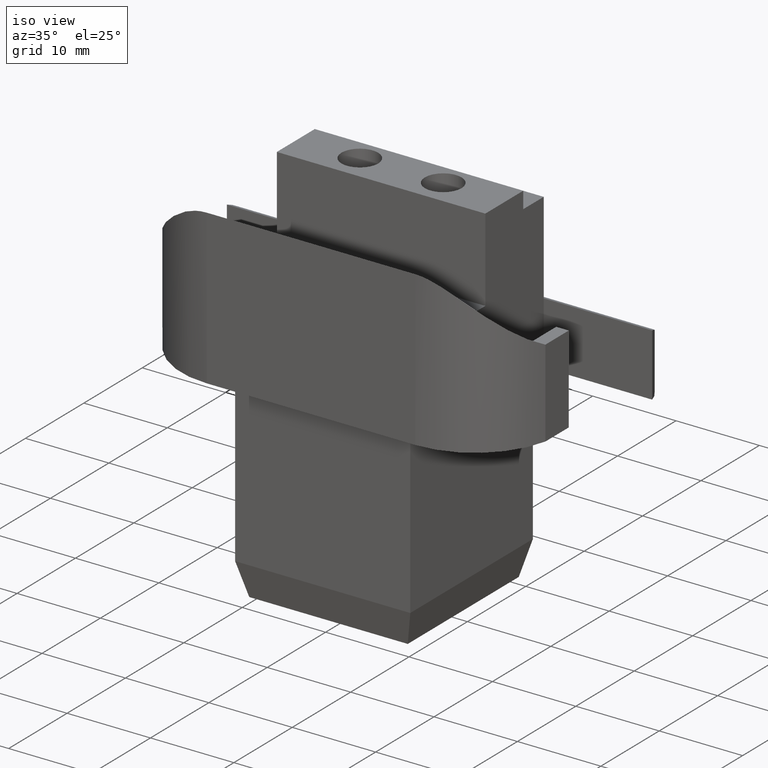
[diagram: clean part render]
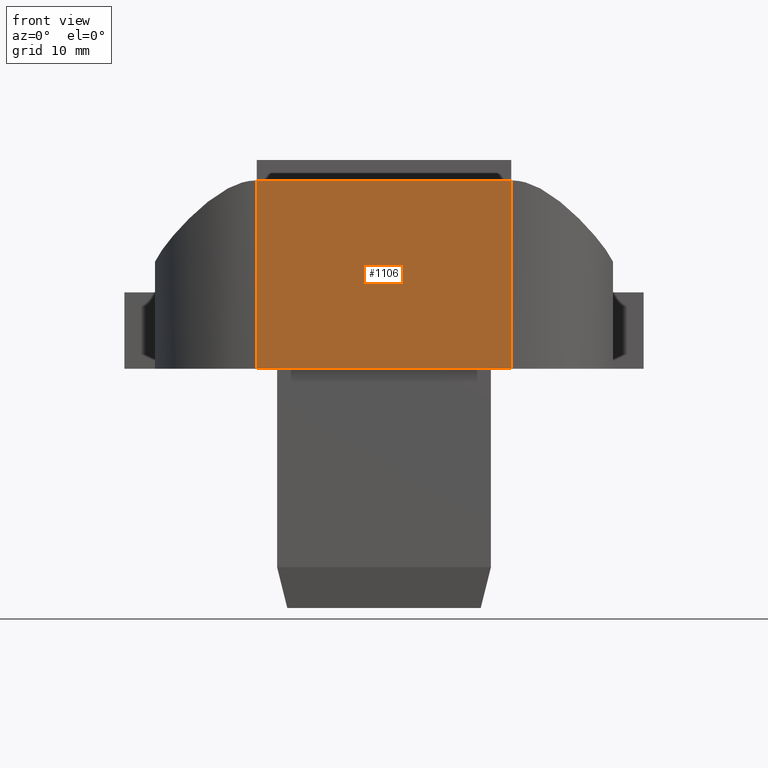
[diagram: tour spotlight — one face highlighted and labeled with its STEP entity id]
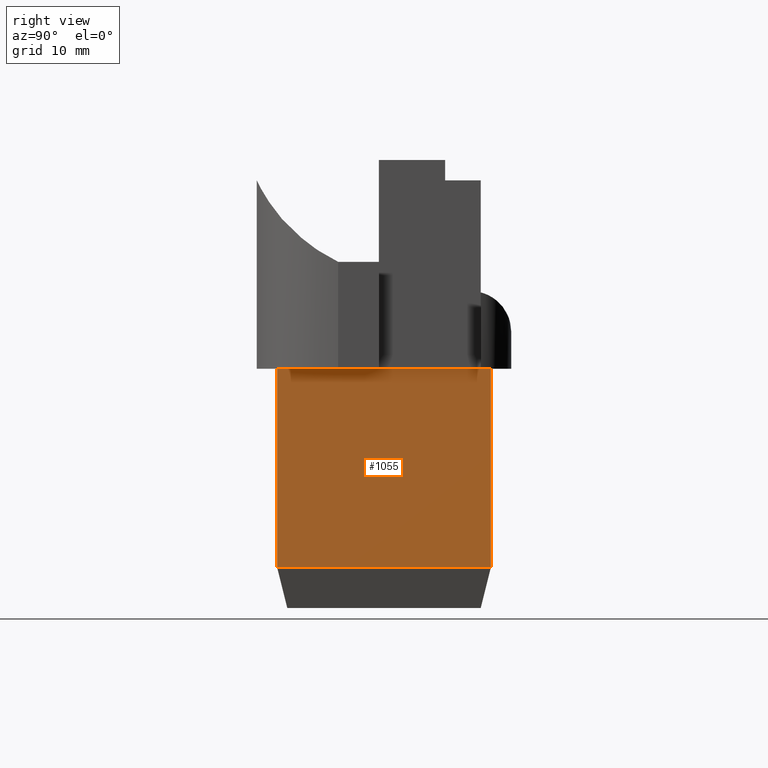
[diagram: tour spotlight — one face highlighted and labeled with its STEP entity id]
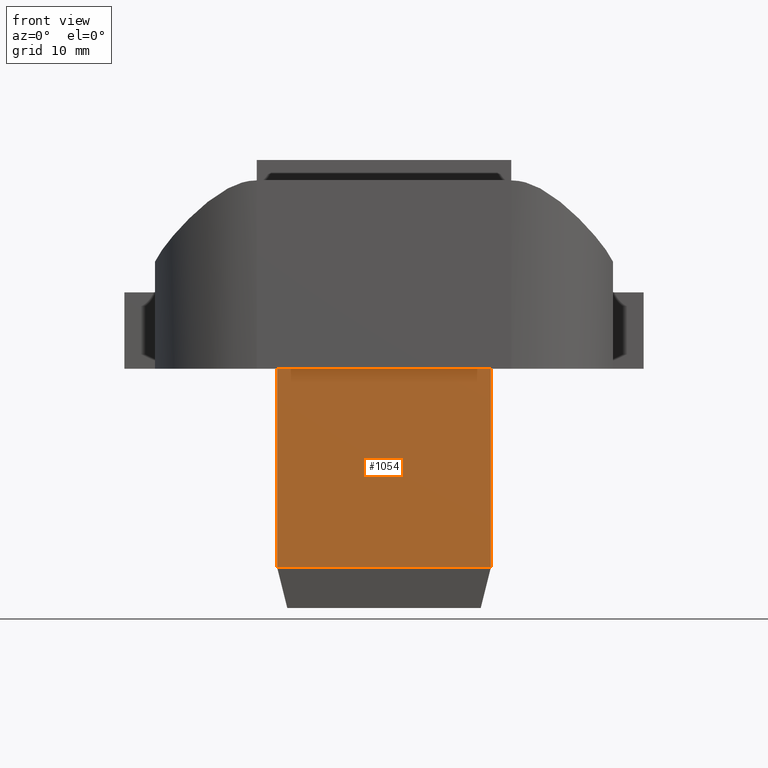
[diagram: tour spotlight — one face highlighted and labeled with its STEP entity id]
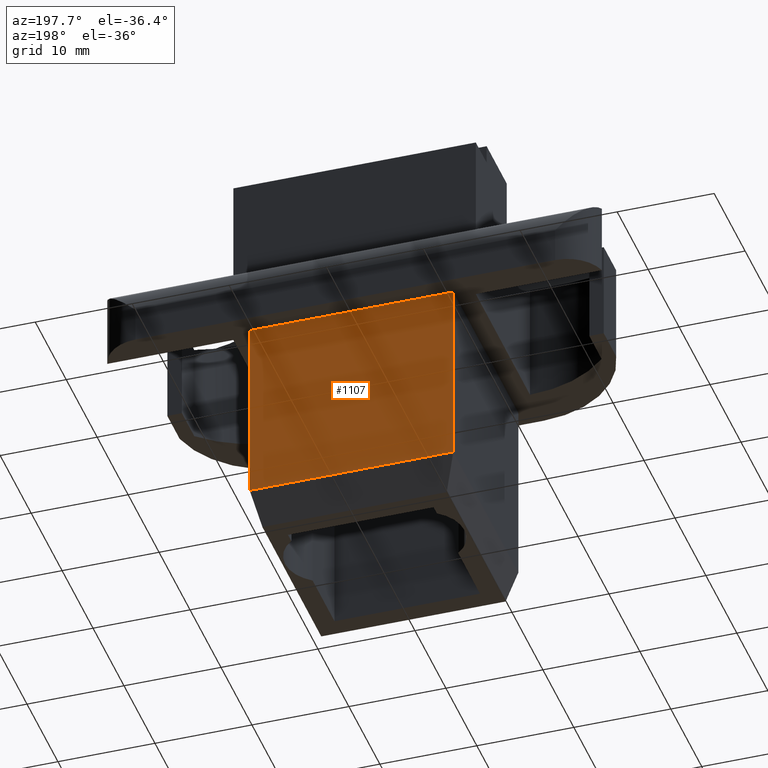
[diagram: tour spotlight — one face highlighted and labeled with its STEP entity id]
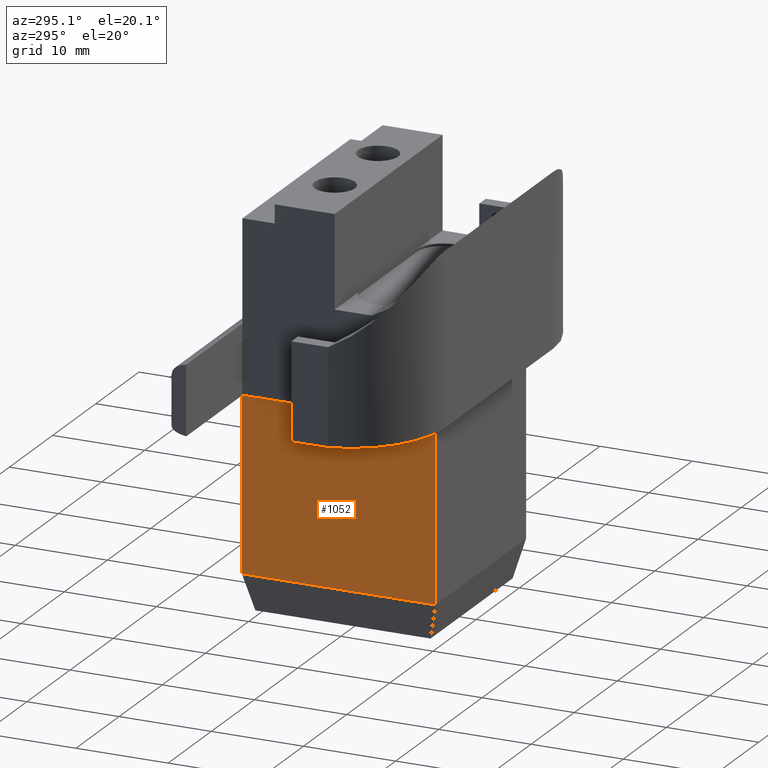
[diagram: tour spotlight — one face highlighted and labeled with its STEP entity id]
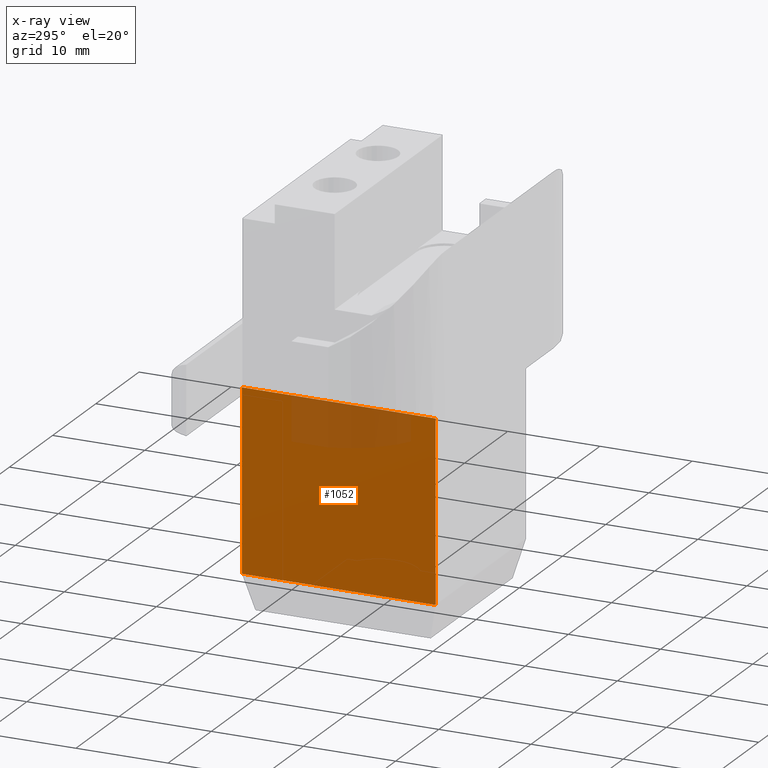
[diagram: x-ray of the same camera — body ghosted, this tour face saturated]
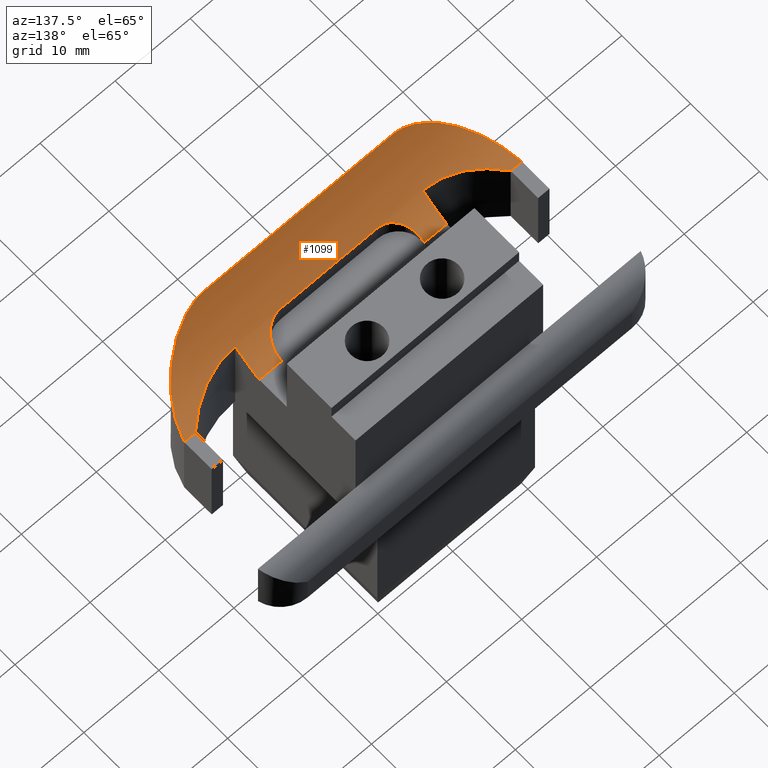
[diagram: tour spotlight — one face highlighted and labeled with its STEP entity id]
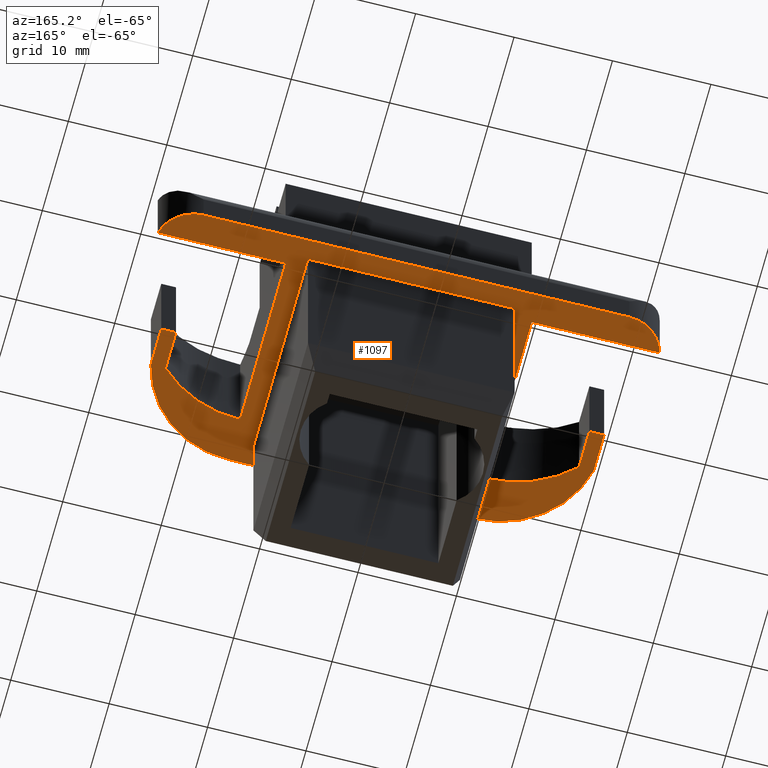
[diagram: tour spotlight — one face highlighted and labeled with its STEP entity id]
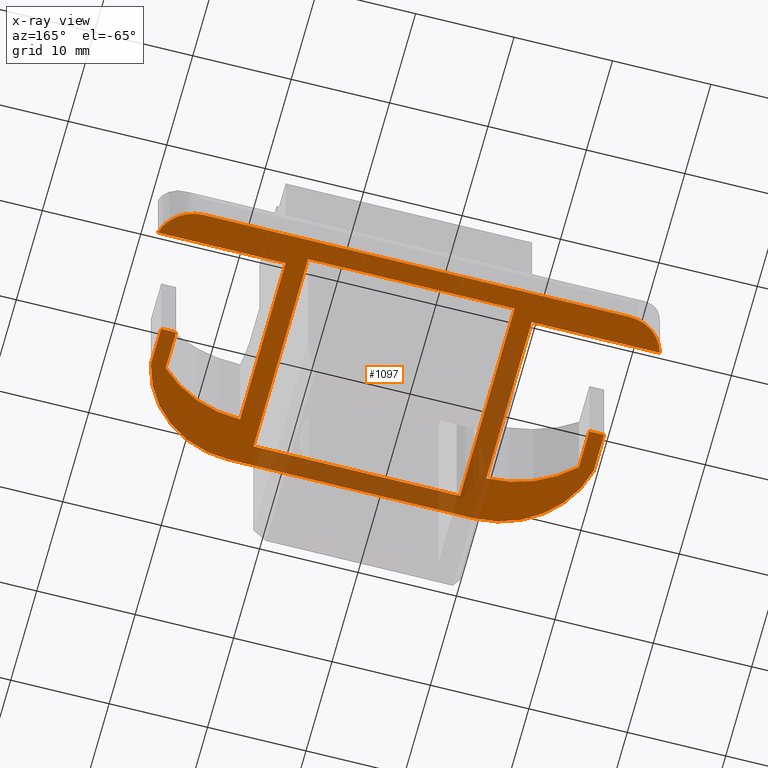
[diagram: x-ray of the same camera — body ghosted, this tour face saturated]
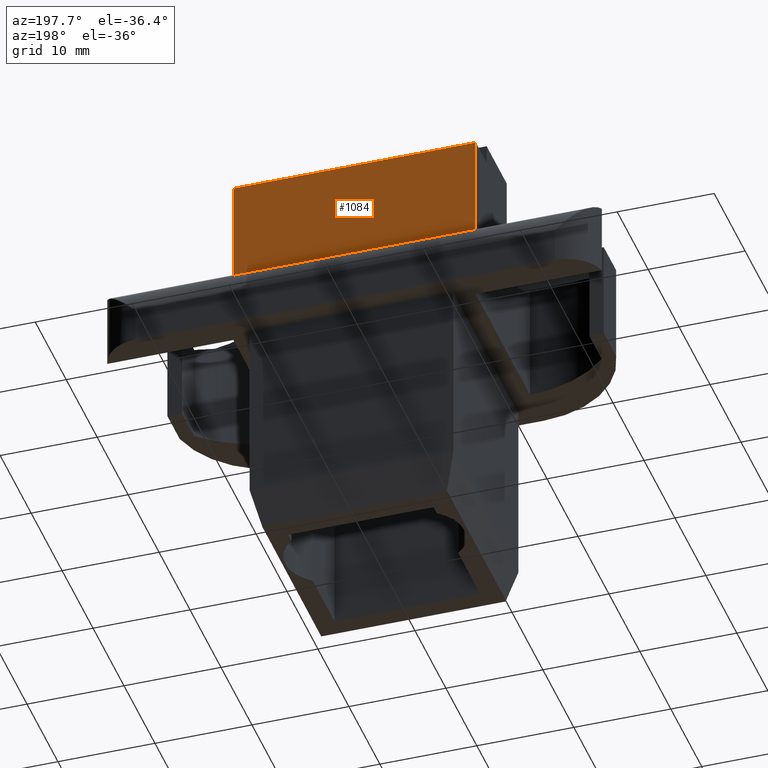
[diagram: tour spotlight — one face highlighted and labeled with its STEP entity id]
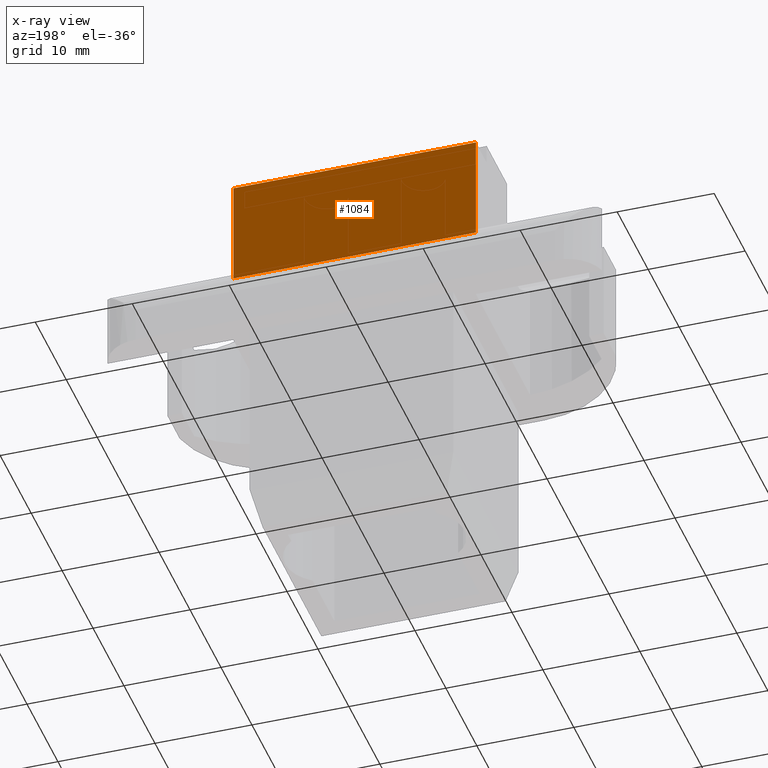
[diagram: x-ray of the same camera — body ghosted, this tour face saturated]
A machine part: a face-by-face anatomy tour. The part has 60 B-rep faces; the first image is the clean iso view, then the 8 largest visible faces are spotlighted one at a time (largest first), each with its STEP entity span.

Face 1 — front view, entity #1106. In plain terms, the highlighted planar face has unit normal (0, -1, 0).
Definition (entity closure, byte-faithful):
#134=FACE_OUTER_BOUND('',#202,.T.);
#202=EDGE_LOOP('',(#998,#999,#1000,#1001));
#306=LINE('',#1803,#426);
#312=LINE('',#1818,#432);
#318=LINE('',#1831,#438);
#323=LINE('',#1861,#443);
#426=VECTOR('',#1450,18.5);
#432=VECTOR('',#1464,25.);
#438=VECTOR('',#1474,25.);
#443=VECTOR('',#1489,18.5);
#532=VERTEX_POINT('',#1788);
#533=VERTEX_POINT('',#1801);
#538=VERTEX_POINT('',#1816);
#543=VERTEX_POINT('',#1830);
#676=EDGE_CURVE('',#533,#532,#306,.T.);
#684=EDGE_CURVE('',#538,#533,#312,.T.);
#690=EDGE_CURVE('',#532,#543,#318,.T.);
#697=EDGE_CURVE('',#538,#543,#323,.T.);
#998=ORIENTED_EDGE('',*,*,#684,.F.);
#999=ORIENTED_EDGE('',*,*,#697,.T.);
#1000=ORIENTED_EDGE('',*,*,#690,.F.);
#1001=ORIENTED_EDGE('',*,*,#676,.F.);
#1046=PLANE('',#1196);
#1106=ADVANCED_FACE('',(#134),#1046,.T.);
#1196=AXIS2_PLACEMENT_3D('',#1863,#1492,#1493);
#1450=DIRECTION('',(0.,0.,1.));
#1464=DIRECTION('',(-1.,0.,0.));
#1474=DIRECTION('',(1.,0.,0.));
#1489=DIRECTION('',(0.,0.,1.));
#1492=DIRECTION('center_axis',(0.,-1.,0.));
#1493=DIRECTION('ref_axis',(1.,0.,0.));
#1788=CARTESIAN_POINT('',(-12.5,-12.5,30.25));
#1801=CARTESIAN_POINT('',(-12.5,-12.5,11.75));
#1803=CARTESIAN_POINT('',(-12.5,-12.5,11.75));
#1816=CARTESIAN_POINT('',(12.5,-12.5,11.75));
#1818=CARTESIAN_POINT('',(12.5,-12.5,11.75));
#1830=CARTESIAN_POINT('',(12.5,-12.5,30.25));
#1831=CARTESIAN_POINT('',(-12.5,-12.5,30.25));
#1861=CARTESIAN_POINT('',(12.5,-12.5,11.75));
#1863=CARTESIAN_POINT('Origin',(-12.5,-12.5,11.75));

Face 2 — right view, entity #1055. In plain terms, the highlighted planar face has unit normal (1, 0, 0).
Definition (entity closure, byte-faithful):
#83=FACE_OUTER_BOUND('',#144,.T.);
#144=EDGE_LOOP('',(#734,#735,#736,#737));
#217=LINE('',#1530,#337);
#225=LINE('',#1546,#345);
#227=LINE('',#1550,#347);
#228=LINE('',#1551,#348);
#337=VECTOR('',#1223,21.);
#345=VECTOR('',#1239,19.5);
#347=VECTOR('',#1243,19.5);
#348=VECTOR('',#1244,21.);
#444=VERTEX_POINT('',#1498);
#458=VERTEX_POINT('',#1529);
#462=VERTEX_POINT('',#1545);
#463=VERTEX_POINT('',#1549);
#559=EDGE_CURVE('',#444,#458,#217,.T.);
#567=EDGE_CURVE('',#462,#458,#225,.T.);
#569=EDGE_CURVE('',#463,#444,#227,.T.);
#570=EDGE_CURVE('',#462,#463,#228,.T.);
#734=ORIENTED_EDGE('',*,*,#559,.F.);
#735=ORIENTED_EDGE('',*,*,#569,.F.);
#736=ORIENTED_EDGE('',*,*,#570,.F.);
#737=ORIENTED_EDGE('',*,*,#567,.T.);
#1013=PLANE('',#1119);
#1055=ADVANCED_FACE('',(#83),#1013,.T.);
#1119=AXIS2_PLACEMENT_3D('',#1548,#1241,#1242);
#1223=DIRECTION('',(0.,-1.,0.));
#1239=DIRECTION('',(0.,0.,-1.));
#1241=DIRECTION('center_axis',(1.,0.,0.));
#1242=DIRECTION('ref_axis',(0.,1.,0.));
#1243=DIRECTION('',(0.,0.,-1.));
#1244=DIRECTION('',(0.,1.,0.));
#1498=CARTESIAN_POINT('',(10.5,10.5,-7.75));
#1529=CARTESIAN_POINT('',(10.5,-10.5,-7.75));
#1530=CARTESIAN_POINT('',(10.5,-5.25,-7.75));
#1545=CARTESIAN_POINT('',(10.5,-10.5,11.75));
#1546=CARTESIAN_POINT('',(10.5,-10.5,0.));
#1548=CARTESIAN_POINT('Origin',(10.5,-10.5,0.));
#1549=CARTESIAN_POINT('',(10.5,10.5,11.75));
#1550=CARTESIAN_POINT('',(10.5,10.5,0.));
#1551=CARTESIAN_POINT('',(10.5,10.5,11.75));

Face 3 — front view, entity #1054. In plain terms, the highlighted planar face has unit normal (0, -1, 0).
Definition (entity closure, byte-faithful):
#82=FACE_OUTER_BOUND('',#143,.T.);
#143=EDGE_LOOP('',(#730,#731,#732,#733));
#221=LINE('',#1538,#341);
#224=LINE('',#1543,#344);
#225=LINE('',#1546,#345);
#226=LINE('',#1547,#346);
#341=VECTOR('',#1231,19.5);
#344=VECTOR('',#1236,21.);
#345=VECTOR('',#1239,19.5);
#346=VECTOR('',#1240,21.);
#458=VERTEX_POINT('',#1529);
#459=VERTEX_POINT('',#1533);
#460=VERTEX_POINT('',#1537);
#462=VERTEX_POINT('',#1545);
#563=EDGE_CURVE('',#460,#459,#221,.T.);
#566=EDGE_CURVE('',#458,#459,#224,.T.);
#567=EDGE_CURVE('',#462,#458,#225,.T.);
#568=EDGE_CURVE('',#460,#462,#226,.T.);
#730=ORIENTED_EDGE('',*,*,#566,.F.);
#731=ORIENTED_EDGE('',*,*,#567,.F.);
#732=ORIENTED_EDGE('',*,*,#568,.F.);
#733=ORIENTED_EDGE('',*,*,#563,.T.);
#1012=PLANE('',#1118);
#1054=ADVANCED_FACE('',(#82),#1012,.T.);
#1118=AXIS2_PLACEMENT_3D('',#1544,#1237,#1238);
#1231=DIRECTION('',(0.,0.,-1.));
#1236=DIRECTION('',(-1.,0.,0.));
#1237=DIRECTION('center_axis',(0.,-1.,0.));
#1238=DIRECTION('ref_axis',(1.,0.,0.));
#1239=DIRECTION('',(0.,0.,-1.));
#1240=DIRECTION('',(1.,0.,0.));
#1529=CARTESIAN_POINT('',(10.5,-10.5,-7.75));
#1533=CARTESIAN_POINT('',(-10.5,-10.5,-7.75));
#1537=CARTESIAN_POINT('',(-10.5,-10.5,11.75));
#1538=CARTESIAN_POINT('',(-10.5,-10.5,0.));
#1543=CARTESIAN_POINT('',(-5.25,-10.5,-7.75));
#1544=CARTESIAN_POINT('Origin',(-10.5,-10.5,0.));
#1545=CARTESIAN_POINT('',(10.5,-10.5,11.75));
#1546=CARTESIAN_POINT('',(10.5,-10.5,0.));
#1547=CARTESIAN_POINT('',(10.5,-10.5,11.75));

Face 4 — auxiliary view, entity #1107. In plain terms, the highlighted planar face has unit normal (0, 1, 0).
Definition (entity closure, byte-faithful):
#135=FACE_OUTER_BOUND('',#203,.T.);
#203=EDGE_LOOP('',(#1002,#1003,#1004,#1005));
#207=LINE('',#1505,#327);
#223=LINE('',#1541,#343);
#227=LINE('',#1550,#347);
#313=LINE('',#1819,#433);
#327=VECTOR('',#1205,21.);
#343=VECTOR('',#1233,19.5);
#347=VECTOR('',#1243,19.5);
#433=VECTOR('',#1465,21.);
#444=VERTEX_POINT('',#1498);
#447=VERTEX_POINT('',#1503);
#461=VERTEX_POINT('',#1539);
#463=VERTEX_POINT('',#1549);
#547=EDGE_CURVE('',#447,#444,#207,.T.);
#565=EDGE_CURVE('',#447,#461,#223,.T.);
#569=EDGE_CURVE('',#463,#444,#227,.T.);
#685=EDGE_CURVE('',#463,#461,#313,.T.);
#1002=ORIENTED_EDGE('',*,*,#547,.F.);
#1003=ORIENTED_EDGE('',*,*,#565,.T.);
#1004=ORIENTED_EDGE('',*,*,#685,.F.);
#1005=ORIENTED_EDGE('',*,*,#569,.T.);
#1047=PLANE('',#1197);
#1107=ADVANCED_FACE('',(#135),#1047,.T.);
#1197=AXIS2_PLACEMENT_3D('',#1864,#1494,#1495);
#1205=DIRECTION('',(1.,0.,0.));
#1233=DIRECTION('',(0.,0.,1.));
#1243=DIRECTION('',(0.,0.,-1.));
#1465=DIRECTION('',(-1.,0.,0.));
#1494=DIRECTION('center_axis',(0.,1.,0.));
#1495=DIRECTION('ref_axis',(-1.,0.,0.));
#1498=CARTESIAN_POINT('',(10.5,10.5,-7.75));
#1503=CARTESIAN_POINT('',(-10.5,10.5,-7.75));
#1505=CARTESIAN_POINT('',(5.25,10.5,-7.75));
#1539=CARTESIAN_POINT('',(-10.5,10.5,11.75));
#1541=CARTESIAN_POINT('',(-10.5,10.5,0.));
#1549=CARTESIAN_POINT('',(10.5,10.5,11.75));
#1550=CARTESIAN_POINT('',(10.5,10.5,0.));
#1819=CARTESIAN_POINT('',(-10.5,10.5,11.75));
#1864=CARTESIAN_POINT('Origin',(10.5,10.5,0.));

Face 5 — auxiliary view, entity #1052. An x-ray twin of the same camera follows (body ghosted, this face saturated) — the face is partly hidden behind the body. In plain terms, the highlighted planar face has unit normal (-1, 0, 0).
Definition (entity closure, byte-faithful):
#80=FACE_OUTER_BOUND('',#141,.T.);
#141=EDGE_LOOP('',(#722,#723,#724,#725));
#220=LINE('',#1535,#340);
#221=LINE('',#1538,#341);
#222=LINE('',#1540,#342);
#223=LINE('',#1541,#343);
#340=VECTOR('',#1228,21.);
#341=VECTOR('',#1231,19.5);
#342=VECTOR('',#1232,21.);
#343=VECTOR('',#1233,19.5);
#447=VERTEX_POINT('',#1503);
#459=VERTEX_POINT('',#1533);
#460=VERTEX_POINT('',#1537);
#461=VERTEX_POINT('',#1539);
#562=EDGE_CURVE('',#459,#447,#220,.T.);
#563=EDGE_CURVE('',#460,#459,#221,.T.);
#564=EDGE_CURVE('',#461,#460,#222,.T.);
#565=EDGE_CURVE('',#447,#461,#223,.T.);
#722=ORIENTED_EDGE('',*,*,#562,.F.);
#723=ORIENTED_EDGE('',*,*,#563,.F.);
#724=ORIENTED_EDGE('',*,*,#564,.F.);
#725=ORIENTED_EDGE('',*,*,#565,.F.);
#1010=PLANE('',#1116);
#1052=ADVANCED_FACE('',(#80),#1010,.T.);
#1116=AXIS2_PLACEMENT_3D('',#1536,#1229,#1230);
#1228=DIRECTION('',(0.,1.,0.));
#1229=DIRECTION('center_axis',(-1.,0.,0.));
#1230=DIRECTION('ref_axis',(0.,-1.,0.));
#1231=DIRECTION('',(0.,0.,-1.));
#1232=DIRECTION('',(0.,-1.,0.));
#1233=DIRECTION('',(0.,0.,1.));
#1503=CARTESIAN_POINT('',(-10.5,10.5,-7.75));
#1533=CARTESIAN_POINT('',(-10.5,-10.5,-7.75));
#1535=CARTESIAN_POINT('',(-10.5,5.25,-7.75));
#1536=CARTESIAN_POINT('Origin',(-10.5,10.5,0.));
#1537=CARTESIAN_POINT('',(-10.5,-10.5,11.75));
#1538=CARTESIAN_POINT('',(-10.5,-10.5,0.));
#1539=CARTESIAN_POINT('',(-10.5,10.5,11.75));
#1540=CARTESIAN_POINT('',(-10.5,-10.5,11.75));
#1541=CARTESIAN_POINT('',(-10.5,10.5,0.));

Face 6 — auxiliary view, entity #1099. In plain terms, the highlighted cylindrical surface (partial cylindrical patch) has radius 17 mm, axis along (-1, 0, 0).
Definition (entity closure, byte-faithful):
#18=B_SPLINE_CURVE_WITH_KNOTS('',3,(#1638,#1639,#1640,#1641,#1642,#1643,
#1644,#1645,#1646,#1647),.UNSPECIFIED.,.F.,.F.,(4,2,2,2,4),(-0.49665386561659,
-0.367990021638157,-0.239326177659724,-0.119663088829862,0.),
 .UNSPECIFIED.);
#19=B_SPLINE_CURVE_WITH_KNOTS('',3,(#1654,#1655,#1656,#1657,#1658,#1659,
#1660,#1661,#1662,#1663),.UNSPECIFIED.,.F.,.F.,(4,2,2,2,4),(0.,0.119663088829862,
0.239326177659724,0.367990021638157,0.49665386561659),.UNSPECIFIED.);
#20=B_SPLINE_CURVE_WITH_KNOTS('',3,(#1764,#1765,#1766,#1767,#1768,#1769,
#1770,#1771),.UNSPECIFIED.,.F.,.F.,(4,2,2,4),(0.,0.237939619358981,0.475879238717963,
0.940145847800642),.UNSPECIFIED.);
#21=B_SPLINE_CURVE_WITH_KNOTS('',3,(#1789,#1790,#1791,#1792,#1793,#1794,
#1795,#1796,#1797,#1798,#1799,#1800),.UNSPECIFIED.,.F.,.F.,(4,2,2,2,2,4),
(-1.57396714061653,-1.34488086638733,-0.876874331368526,-0.438437165684263,
-0.219218582842132,0.),.UNSPECIFIED.);
#22=B_SPLINE_CURVE_WITH_KNOTS('',3,(#1832,#1833,#1834,#1835,#1836,#1837,
#1838,#1839,#1840,#1841,#1842,#1843),.UNSPECIFIED.,.F.,.F.,(4,2,2,2,2,4),
(-1.57396714061653,-1.34488086638733,-0.876874331368526,-0.438437165684263,
-0.219218582842132,0.),.UNSPECIFIED.);
#23=B_SPLINE_CURVE_WITH_KNOTS('',3,(#1844,#1845,#1846,#1847,#1848,#1849,
#1850,#1851),.UNSPECIFIED.,.F.,.F.,(4,2,2,4),(0.,0.237939619358981,0.475879238717963,
0.940145847800642),.UNSPECIFIED.);
#39=CYLINDRICAL_SURFACE('',#1189,17.);
#60=CIRCLE('',#1141,17.);
#65=CIRCLE('',#1149,17.);
#70=CIRCLE('',#1170,17.);
#71=CIRCLE('',#1173,17.);
#127=FACE_OUTER_BOUND('',#195,.T.);
#195=EDGE_LOOP('',(#958,#959,#960,#961,#962,#963,#964,#965,#966,#967,#968,
#969,#970,#971,#972,#973));
#256=LINE('',#1651,#376);
#258=LINE('',#1666,#378);
#263=LINE('',#1675,#383);
#298=LINE('',#1762,#418);
#315=LINE('',#1825,#435);
#318=LINE('',#1831,#438);
#376=VECTOR('',#1336,13.);
#378=VECTOR('',#1342,3.);
#383=VECTOR('',#1349,3.);
#418=VECTOR('',#1428,1.5);
#435=VECTOR('',#1469,1.5);
#438=VECTOR('',#1474,25.);
#481=VERTEX_POINT('',#1607);
#482=VERTEX_POINT('',#1609);
#490=VERTEX_POINT('',#1631);
#491=VERTEX_POINT('',#1633);
#492=VERTEX_POINT('',#1637);
#493=VERTEX_POINT('',#1650);
#494=VERTEX_POINT('',#1665);
#497=VERTEX_POINT('',#1673);
#516=VERTEX_POINT('',#1729);
#522=VERTEX_POINT('',#1745);
#524=VERTEX_POINT('',#1755);
#527=VERTEX_POINT('',#1760);
#532=VERTEX_POINT('',#1788);
#539=VERTEX_POINT('',#1821);
#541=VERTEX_POINT('',#1824);
#543=VERTEX_POINT('',#1830);
#597=EDGE_CURVE('',#482,#481,#60,.T.);
#609=EDGE_CURVE('',#491,#490,#65,.T.);
#611=EDGE_CURVE('',#491,#492,#18,.T.);
#613=EDGE_CURVE('',#493,#492,#256,.T.);
#615=EDGE_CURVE('',#493,#481,#19,.T.);
#616=EDGE_CURVE('',#494,#482,#258,.T.);
#621=EDGE_CURVE('',#490,#497,#263,.T.);
#648=EDGE_CURVE('',#494,#516,#70,.T.);
#657=EDGE_CURVE('',#522,#497,#71,.T.);
#664=EDGE_CURVE('',#527,#524,#298,.T.);
#665=EDGE_CURVE('',#522,#524,#20,.T.);
#674=EDGE_CURVE('',#527,#532,#21,.T.);
#687=EDGE_CURVE('',#541,#539,#315,.T.);
#690=EDGE_CURVE('',#532,#543,#318,.T.);
#691=EDGE_CURVE('',#541,#543,#22,.T.);
#692=EDGE_CURVE('',#516,#539,#23,.T.);
#958=ORIENTED_EDGE('',*,*,#609,.T.);
#959=ORIENTED_EDGE('',*,*,#621,.T.);
#960=ORIENTED_EDGE('',*,*,#657,.F.);
#961=ORIENTED_EDGE('',*,*,#665,.T.);
#962=ORIENTED_EDGE('',*,*,#664,.F.);
#963=ORIENTED_EDGE('',*,*,#674,.T.);
#964=ORIENTED_EDGE('',*,*,#690,.T.);
#965=ORIENTED_EDGE('',*,*,#691,.F.);
#966=ORIENTED_EDGE('',*,*,#687,.T.);
#967=ORIENTED_EDGE('',*,*,#692,.F.);
#968=ORIENTED_EDGE('',*,*,#648,.F.);
#969=ORIENTED_EDGE('',*,*,#616,.T.);
#970=ORIENTED_EDGE('',*,*,#597,.T.);
#971=ORIENTED_EDGE('',*,*,#615,.F.);
#972=ORIENTED_EDGE('',*,*,#613,.T.);
#973=ORIENTED_EDGE('',*,*,#611,.F.);
#1099=ADVANCED_FACE('',(#127),#39,.F.);
#1141=AXIS2_PLACEMENT_3D('',#1610,#1305,#1306);
#1149=AXIS2_PLACEMENT_3D('',#1634,#1328,#1329);
#1170=AXIS2_PLACEMENT_3D('',#1730,#1400,#1401);
#1173=AXIS2_PLACEMENT_3D('',#1747,#1414,#1415);
#1189=AXIS2_PLACEMENT_3D('',#1829,#1472,#1473);
#1305=DIRECTION('center_axis',(-1.,0.,0.));
#1306=DIRECTION('ref_axis',(0.,-0.90210494404439,-0.431516708750273));
#1328=DIRECTION('center_axis',(1.,0.,0.));
#1329=DIRECTION('ref_axis',(0.,-0.90210494404439,-0.431516708750273));
#1336=DIRECTION('',(-1.,0.,0.));
#1342=DIRECTION('',(-1.,0.,0.));
#1349=DIRECTION('',(-1.,0.,0.));
#1400=DIRECTION('center_axis',(-1.,0.,0.));
#1401=DIRECTION('ref_axis',(0.,-0.90210494404439,-0.431516708750273));
#1414=DIRECTION('center_axis',(1.,0.,0.));
#1415=DIRECTION('ref_axis',(0.,-0.90210494404439,-0.431516708750273));
#1428=DIRECTION('',(1.,0.,0.));
#1469=DIRECTION('',(-1.,0.,0.));
#1472=DIRECTION('center_axis',(-1.,0.,0.));
#1473=DIRECTION('ref_axis',(0.,-0.90210494404439,-0.431516708750273));
#1474=DIRECTION('',(1.,0.,0.));
#1607=CARTESIAN_POINT('',(9.5,-5.,22.4993501314473));
#1609=CARTESIAN_POINT('',(9.5,-4.5,22.25));
#1610=CARTESIAN_POINT('Origin',(9.5,2.83578404875464,37.5857840487546));
#1631=CARTESIAN_POINT('',(-9.5,-4.5,22.25));
#1633=CARTESIAN_POINT('',(-9.5,-5.,22.4993501314473));
#1634=CARTESIAN_POINT('Origin',(-9.5,2.83578404875464,37.5857840487546));
#1637=CARTESIAN_POINT('',(-6.5,-8.,24.4867083543114));
#1638=CARTESIAN_POINT('Ctrl Pts',(-9.5,-5.,22.4993501314473));
#1639=CARTESIAN_POINT('Ctrl Pts',(-9.5,-5.3806036430838,22.6970328954272));
#1640=CARTESIAN_POINT('Ctrl Pts',(-9.42389090273719,-5.780476602267,22.9246959425178));
#1641=CARTESIAN_POINT('Ctrl Pts',(-9.11939547022617,-6.51560183439818,23.3822973612591));
#1642=CARTESIAN_POINT('Ctrl Pts',(-8.89137086112854,-6.85126982599074,23.6118083240711));
#1643=CARTESIAN_POINT('Ctrl Pts',(-8.37016136934297,-7.37247931777632,23.988454125544));
#1644=CARTESIAN_POINT('Ctrl Pts',(-8.04594130234817,-7.60189032349564,24.1658267054487));
#1645=CARTESIAN_POINT('Ctrl Pts',(-7.31077408114087,-7.91588935688624,24.4160527750874));
#1646=CARTESIAN_POINT('Ctrl Pts',(-6.89887696276621,-8.,24.4867083543114));
#1647=CARTESIAN_POINT('Ctrl Pts',(-6.5,-8.,24.4867083543114));
#1650=CARTESIAN_POINT('',(6.5,-8.,24.4867083543114));
#1651=CARTESIAN_POINT('',(22.5,-8.,24.4867083543114));
#1654=CARTESIAN_POINT('Ctrl Pts',(6.5,-8.,24.4867083543114));
#1655=CARTESIAN_POINT('Ctrl Pts',(6.89887696276621,-8.,24.4867083543114));
#1656=CARTESIAN_POINT('Ctrl Pts',(7.31077408114087,-7.91588935688624,24.4160527750874));
#1657=CARTESIAN_POINT('Ctrl Pts',(8.04594130234817,-7.60189032349564,24.1658267054487));
#1658=CARTESIAN_POINT('Ctrl Pts',(8.37016136934297,-7.37247931777632,23.988454125544));
#1659=CARTESIAN_POINT('Ctrl Pts',(8.89137086112854,-6.85126982599074,23.6118083240711));
#1660=CARTESIAN_POINT('Ctrl Pts',(9.11939547022616,-6.51560183439818,23.3822973612591));
#1661=CARTESIAN_POINT('Ctrl Pts',(9.42389090273719,-5.780476602267,22.9246959425178));
#1662=CARTESIAN_POINT('Ctrl Pts',(9.5,-5.3806036430838,22.6970328954272));
#1663=CARTESIAN_POINT('Ctrl Pts',(9.5,-5.,22.4993501314473));
#1665=CARTESIAN_POINT('',(12.5,-4.5,22.25));
#1666=CARTESIAN_POINT('',(22.5,-4.5,22.25));
#1673=CARTESIAN_POINT('',(-12.5,-4.5,22.25));
#1675=CARTESIAN_POINT('',(22.5,-4.5,22.25));
#1729=CARTESIAN_POINT('',(12.5,-8.,24.4867083543114));
#1730=CARTESIAN_POINT('Origin',(12.5,2.83578404875464,37.5857840487546));
#1745=CARTESIAN_POINT('',(-12.5,-8.,24.4867083543114));
#1747=CARTESIAN_POINT('Origin',(-12.5,2.83578404875464,37.5857840487546));
#1755=CARTESIAN_POINT('',(-21.,-4.5,22.25));
#1760=CARTESIAN_POINT('',(-22.5,-4.5,22.25));
#1762=CARTESIAN_POINT('',(-22.5,-4.5,22.25));
#1764=CARTESIAN_POINT('Ctrl Pts',(-12.5,-8.,24.4867083543114));
#1765=CARTESIAN_POINT('Ctrl Pts',(-13.2931320645299,-8.,24.4867083543114));
#1766=CARTESIAN_POINT('Ctrl Pts',(-14.1005258280873,-7.92074393451008,24.4199500886181));
#1767=CARTESIAN_POINT('Ctrl Pts',(-15.686421610093,-7.59992962378782,24.1642357834469));
#1768=CARTESIAN_POINT('Ctrl Pts',(-16.4650914981344,-7.35855999038589,23.9760849093927));
#1769=CARTESIAN_POINT('Ctrl Pts',(-18.6514924626217,-6.4329831682022,23.3149943062214));
#1770=CARTESIAN_POINT('Ctrl Pts',(-19.9550513318158,-5.53624076261595,22.7456798056689));
#1771=CARTESIAN_POINT('Ctrl Pts',(-21.,-4.5,22.25));
#1788=CARTESIAN_POINT('',(-12.5,-12.5,30.25));
#1789=CARTESIAN_POINT('Ctrl Pts',(-22.5,-4.5,22.25));
#1790=CARTESIAN_POINT('Ctrl Pts',(-22.3422901509547,-5.20093266242356,22.5852871054986));
#1791=CARTESIAN_POINT('Ctrl Pts',(-22.1122415496642,-5.87620892558508,22.9682350889718));
#1792=CARTESIAN_POINT('Ctrl Pts',(-21.2346121287036,-7.79806582865506,24.2326335759042));
#1793=CARTESIAN_POINT('Ctrl Pts',(-20.3967841286239,-8.90280127785846,25.2243385974287));
#1794=CARTESIAN_POINT('Ctrl Pts',(-18.6280660111087,-10.5491147136605,27.0383462196492));
#1795=CARTESIAN_POINT('Ctrl Pts',(-17.5802916796132,-11.2419323645502,28.0101388859218));
#1796=CARTESIAN_POINT('Ctrl Pts',(-15.8255083386582,-11.9661668757496,29.2119556510308));
#1797=CARTESIAN_POINT('Ctrl Pts',(-15.2109343459544,-12.1571606278681,29.5672538732347));
#1798=CARTESIAN_POINT('Ctrl Pts',(-13.9136365308767,-12.423624094896,30.0867387423348));
#1799=CARTESIAN_POINT('Ctrl Pts',(-13.2307286094738,-12.5,30.25));
#1800=CARTESIAN_POINT('Ctrl Pts',(-12.5,-12.5,30.25));
#1821=CARTESIAN_POINT('',(21.,-4.5,22.25));
#1824=CARTESIAN_POINT('',(22.5,-4.5,22.25));
#1825=CARTESIAN_POINT('',(22.5,-4.5,22.25));
#1829=CARTESIAN_POINT('Origin',(22.5,2.83578404875464,37.5857840487546));
#1830=CARTESIAN_POINT('',(12.5,-12.5,30.25));
#1831=CARTESIAN_POINT('',(-12.5,-12.5,30.25));
#1832=CARTESIAN_POINT('Ctrl Pts',(22.5,-4.5,22.25));
#1833=CARTESIAN_POINT('Ctrl Pts',(22.3422901509547,-5.20093266242356,22.5852871054986));
#1834=CARTESIAN_POINT('Ctrl Pts',(22.1122415496642,-5.87620892558508,22.9682350889718));
#1835=CARTESIAN_POINT('Ctrl Pts',(21.2346121287036,-7.79806582865506,24.2326335759042));
#1836=CARTESIAN_POINT('Ctrl Pts',(20.3967841286239,-8.90280127785846,25.2243385974287));
#1837=CARTESIAN_POINT('Ctrl Pts',(18.6280660111087,-10.5491147136605,27.0383462196492));
#1838=CARTESIAN_POINT('Ctrl Pts',(17.5802916796132,-11.2419323645502,28.0101388859218));
#1839=CARTESIAN_POINT('Ctrl Pts',(15.8255083386582,-11.9661668757496,29.2119556510308));
#1840=CARTESIAN_POINT('Ctrl Pts',(15.2109343459544,-12.1571606278681,29.5672538732347));
#1841=CARTESIAN_POINT('Ctrl Pts',(13.9136365308767,-12.423624094896,30.0867387423348));
#1842=CARTESIAN_POINT('Ctrl Pts',(13.2307286094738,-12.5,30.25));
#1843=CARTESIAN_POINT('Ctrl Pts',(12.5,-12.5,30.25));
#1844=CARTESIAN_POINT('Ctrl Pts',(12.5,-8.,24.4867083543114));
#1845=CARTESIAN_POINT('Ctrl Pts',(13.2931320645299,-8.,24.4867083543114));
#1846=CARTESIAN_POINT('Ctrl Pts',(14.1005258280873,-7.92074393451008,24.4199500886181));
#1847=CARTESIAN_POINT('Ctrl Pts',(15.686421610093,-7.59992962378782,24.1642357834469));
#1848=CARTESIAN_POINT('Ctrl Pts',(16.4650914981344,-7.35855999038589,23.9760849093927));
#1849=CARTESIAN_POINT('Ctrl Pts',(18.6514924626217,-6.4329831682022,23.3149943062214));
#1850=CARTESIAN_POINT('Ctrl Pts',(19.9550513318158,-5.53624076261595,22.7456798056689));
#1851=CARTESIAN_POINT('Ctrl Pts',(21.,-4.5,22.25));

Face 7 — auxiliary view, entity #1097. An x-ray twin of the same camera follows (body ghosted, this face saturated) — the face is partly hidden behind the body. In plain terms, the highlighted planar face has unit normal (0, 0, 1).
Definition (entity closure, byte-faithful):
#49=FACE_BOUND('',#193,.T.);
#66=CIRCLE('',#1157,4.);
#68=CIRCLE('',#1164,4.);
#72=CIRCLE('',#1178,12.0714285714286);
#73=CIRCLE('',#1183,10.25);
#74=CIRCLE('',#1186,12.0714285714286);
#75=CIRCLE('',#1187,10.25);
#125=FACE_OUTER_BOUND('',#192,.T.);
#192=EDGE_LOOP('',(#932,#933,#934,#935,#936,#937,#938,#939,#940,#941,#942,
#943,#944,#945,#946,#947,#948,#949));
#193=EDGE_LOOP('',(#950,#951,#952,#953));
#222=LINE('',#1540,#342);
#226=LINE('',#1547,#346);
#228=LINE('',#1551,#348);
#271=LINE('',#1699,#391);
#285=LINE('',#1734,#405);
#290=LINE('',#1744,#410);
#300=LINE('',#1777,#420);
#302=LINE('',#1781,#422);
#304=LINE('',#1785,#424);
#307=LINE('',#1805,#427);
#308=LINE('',#1807,#428);
#309=LINE('',#1811,#429);
#310=LINE('',#1813,#430);
#311=LINE('',#1815,#431);
#312=LINE('',#1818,#432);
#313=LINE('',#1819,#433);
#342=VECTOR('',#1232,21.);
#346=VECTOR('',#1240,21.);
#348=VECTOR('',#1244,21.);
#391=VECTOR('',#1371,43.2540333075852);
#405=VECTOR('',#1403,17.5);
#410=VECTOR('',#1412,17.5);
#420=VECTOR('',#1436,4.);
#422=VECTOR('',#1440,1.5);
#424=VECTOR('',#1444,4.);
#427=VECTOR('',#1453,13.);
#428=VECTOR('',#1456,13.);
#429=VECTOR('',#1459,4.);
#430=VECTOR('',#1460,1.5);
#431=VECTOR('',#1461,4.);
#432=VECTOR('',#1464,25.);
#433=VECTOR('',#1465,21.);
#460=VERTEX_POINT('',#1537);
#461=VERTEX_POINT('',#1539);
#462=VERTEX_POINT('',#1545);
#463=VERTEX_POINT('',#1549);
#500=VERTEX_POINT('',#1683);
#501=VERTEX_POINT('',#1684);
#506=VERTEX_POINT('',#1698);
#510=VERTEX_POINT('',#1708);
#517=VERTEX_POINT('',#1731);
#518=VERTEX_POINT('',#1733);
#520=VERTEX_POINT('',#1741);
#521=VERTEX_POINT('',#1743);
#528=VERTEX_POINT('',#1772);
#529=VERTEX_POINT('',#1776);
#530=VERTEX_POINT('',#1780);
#531=VERTEX_POINT('',#1784);
#533=VERTEX_POINT('',#1801);
#534=VERTEX_POINT('',#1808);
#535=VERTEX_POINT('',#1810);
#536=VERTEX_POINT('',#1812);
#537=VERTEX_POINT('',#1814);
#538=VERTEX_POINT('',#1816);
#564=EDGE_CURVE('',#461,#460,#222,.T.);
#568=EDGE_CURVE('',#460,#462,#226,.T.);
#570=EDGE_CURVE('',#462,#463,#228,.T.);
#625=EDGE_CURVE('',#500,#501,#66,.T.);
#632=EDGE_CURVE('',#506,#501,#271,.T.);
#637=EDGE_CURVE('',#506,#510,#68,.T.);
#650=EDGE_CURVE('',#518,#517,#285,.T.);
#655=EDGE_CURVE('',#521,#520,#290,.T.);
#666=EDGE_CURVE('',#521,#528,#72,.T.);
#668=EDGE_CURVE('',#528,#529,#300,.T.);
#670=EDGE_CURVE('',#529,#530,#302,.T.);
#672=EDGE_CURVE('',#530,#531,#304,.T.);
#675=EDGE_CURVE('',#531,#533,#73,.T.);
#677=EDGE_CURVE('',#510,#520,#307,.T.);
#678=EDGE_CURVE('',#500,#518,#308,.T.);
#679=EDGE_CURVE('',#517,#534,#74,.T.);
#680=EDGE_CURVE('',#534,#535,#309,.T.);
#681=EDGE_CURVE('',#535,#536,#310,.T.);
#682=EDGE_CURVE('',#536,#537,#311,.T.);
#683=EDGE_CURVE('',#537,#538,#75,.T.);
#684=EDGE_CURVE('',#538,#533,#312,.T.);
#685=EDGE_CURVE('',#463,#461,#313,.T.);
#932=ORIENTED_EDGE('',*,*,#625,.F.);
#933=ORIENTED_EDGE('',*,*,#678,.T.);
#934=ORIENTED_EDGE('',*,*,#650,.T.);
#935=ORIENTED_EDGE('',*,*,#679,.T.);
#936=ORIENTED_EDGE('',*,*,#680,.T.);
#937=ORIENTED_EDGE('',*,*,#681,.T.);
#938=ORIENTED_EDGE('',*,*,#682,.T.);
#939=ORIENTED_EDGE('',*,*,#683,.T.);
#940=ORIENTED_EDGE('',*,*,#684,.T.);
#941=ORIENTED_EDGE('',*,*,#675,.F.);
#942=ORIENTED_EDGE('',*,*,#672,.F.);
#943=ORIENTED_EDGE('',*,*,#670,.F.);
#944=ORIENTED_EDGE('',*,*,#668,.F.);
#945=ORIENTED_EDGE('',*,*,#666,.F.);
#946=ORIENTED_EDGE('',*,*,#655,.T.);
#947=ORIENTED_EDGE('',*,*,#677,.F.);
#948=ORIENTED_EDGE('',*,*,#637,.F.);
#949=ORIENTED_EDGE('',*,*,#632,.T.);
#950=ORIENTED_EDGE('',*,*,#570,.T.);
#951=ORIENTED_EDGE('',*,*,#685,.T.);
#952=ORIENTED_EDGE('',*,*,#564,.T.);
#953=ORIENTED_EDGE('',*,*,#568,.T.);
#1040=PLANE('',#1185);
#1097=ADVANCED_FACE('',(#125,#49),#1040,.F.);
#1157=AXIS2_PLACEMENT_3D('',#1685,#1357,#1358);
#1164=AXIS2_PLACEMENT_3D('',#1709,#1379,#1380);
#1178=AXIS2_PLACEMENT_3D('',#1773,#1431,#1432);
#1183=AXIS2_PLACEMENT_3D('',#1802,#1448,#1449);
#1185=AXIS2_PLACEMENT_3D('',#1806,#1454,#1455);
#1186=AXIS2_PLACEMENT_3D('',#1809,#1457,#1458);
#1187=AXIS2_PLACEMENT_3D('',#1817,#1462,#1463);
#1232=DIRECTION('',(0.,-1.,0.));
#1240=DIRECTION('',(1.,0.,0.));
#1244=DIRECTION('',(0.,1.,0.));
#1357=DIRECTION('center_axis',(0.,0.,1.));
#1358=DIRECTION('ref_axis',(0.968245836551854,0.25,0.));
#1371=DIRECTION('',(1.,0.,0.));
#1379=DIRECTION('center_axis',(0.,0.,1.));
#1380=DIRECTION('ref_axis',(-0.968245836551854,0.25,0.));
#1403=DIRECTION('',(0.,-1.,0.));
#1412=DIRECTION('',(0.,1.,0.));
#1431=DIRECTION('center_axis',(0.,0.,-1.));
#1432=DIRECTION('ref_axis',(0.,1.,0.));
#1436=DIRECTION('',(0.,1.,0.));
#1440=DIRECTION('',(-1.,0.,0.));
#1444=DIRECTION('',(0.,-1.,0.));
#1448=DIRECTION('center_axis',(0.,0.,1.));
#1449=DIRECTION('ref_axis',(0.,-1.,0.));
#1453=DIRECTION('',(1.,0.,0.));
#1454=DIRECTION('center_axis',(0.,0.,1.));
#1455=DIRECTION('ref_axis',(1.,0.,0.));
#1456=DIRECTION('',(-1.,0.,0.));
#1457=DIRECTION('center_axis',(0.,0.,1.));
#1458=DIRECTION('ref_axis',(0.,1.,0.));
#1459=DIRECTION('',(0.,1.,0.));
#1460=DIRECTION('',(1.,0.,0.));
#1461=DIRECTION('',(0.,-1.,0.));
#1462=DIRECTION('center_axis',(0.,0.,-1.));
#1463=DIRECTION('ref_axis',(0.,-1.,0.));
#1464=DIRECTION('',(-1.,0.,0.));
#1465=DIRECTION('',(-1.,0.,0.));
#1537=CARTESIAN_POINT('',(-10.5,-10.5,11.75));
#1539=CARTESIAN_POINT('',(-10.5,10.5,11.75));
#1540=CARTESIAN_POINT('',(-10.5,-10.5,11.75));
#1545=CARTESIAN_POINT('',(10.5,-10.5,11.75));
#1547=CARTESIAN_POINT('',(10.5,-10.5,11.75));
#1549=CARTESIAN_POINT('',(10.5,10.5,11.75));
#1551=CARTESIAN_POINT('',(10.5,10.5,11.75));
#1683=CARTESIAN_POINT('',(25.5,9.5,11.75));
#1684=CARTESIAN_POINT('',(21.6270166537926,12.5,11.75));
#1685=CARTESIAN_POINT('Origin',(21.6270166537926,8.5,11.75));
#1698=CARTESIAN_POINT('',(-21.6270166537926,12.5,11.75));
#1699=CARTESIAN_POINT('',(-12.5,12.5,11.75));
#1708=CARTESIAN_POINT('',(-25.5,9.5,11.75));
#1709=CARTESIAN_POINT('Origin',(-21.6270166537926,8.5,11.75));
#1731=CARTESIAN_POINT('',(12.5,-8.,11.75));
#1733=CARTESIAN_POINT('',(12.5,9.5,11.75));
#1734=CARTESIAN_POINT('',(12.5,12.5,11.75));
#1741=CARTESIAN_POINT('',(-12.5,9.5,11.75));
#1743=CARTESIAN_POINT('',(-12.5,-8.,11.75));
#1744=CARTESIAN_POINT('',(-12.5,-12.5,11.75));
#1772=CARTESIAN_POINT('',(-21.,-4.5,11.75));
#1773=CARTESIAN_POINT('Origin',(-12.5,4.07142857142857,11.75));
#1776=CARTESIAN_POINT('',(-21.,-0.499999999999998,11.75));
#1777=CARTESIAN_POINT('',(-21.,-0.499999999999997,11.75));
#1780=CARTESIAN_POINT('',(-22.5,-0.499999999999998,11.75));
#1781=CARTESIAN_POINT('',(-22.5,-0.499999999999997,11.75));
#1784=CARTESIAN_POINT('',(-22.5,-4.5,11.75));
#1785=CARTESIAN_POINT('',(-22.5,-4.5,11.75));
#1801=CARTESIAN_POINT('',(-12.5,-12.5,11.75));
#1802=CARTESIAN_POINT('Origin',(-12.5,-2.25,11.75));
#1805=CARTESIAN_POINT('',(-12.5,9.5,11.75));
#1806=CARTESIAN_POINT('Origin',(0.,0.,11.75));
#1807=CARTESIAN_POINT('',(12.5,9.5,11.75));
#1808=CARTESIAN_POINT('',(21.,-4.5,11.75));
#1809=CARTESIAN_POINT('Origin',(12.5,4.07142857142857,11.75));
#1810=CARTESIAN_POINT('',(21.,-0.499999999999998,11.75));
#1811=CARTESIAN_POINT('',(21.,-0.499999999999997,11.75));
#1812=CARTESIAN_POINT('',(22.5,-0.499999999999998,11.75));
#1813=CARTESIAN_POINT('',(22.5,-0.499999999999997,11.75));
#1814=CARTESIAN_POINT('',(22.5,-4.5,11.75));
#1815=CARTESIAN_POINT('',(22.5,-4.5,11.75));
#1816=CARTESIAN_POINT('',(12.5,-12.5,11.75));
#1817=CARTESIAN_POINT('Origin',(12.5,-2.25,11.75));
#1818=CARTESIAN_POINT('',(12.5,-12.5,11.75));
#1819=CARTESIAN_POINT('',(-10.5,10.5,11.75));

Face 8 — auxiliary view, entity #1084. An x-ray twin of the same camera follows (body ghosted, this face saturated) — the face is partly hidden behind the body. In plain terms, the highlighted planar face has unit normal (0, -1, 0).
Definition (entity closure, byte-faithful):
#112=FACE_OUTER_BOUND('',#177,.T.);
#177=EDGE_LOOP('',(#866,#867,#868,#869));
#277=LINE('',#1716,#397);
#278=LINE('',#1719,#398);
#279=LINE('',#1721,#399);
#280=LINE('',#1722,#400);
#397=VECTOR('',#1389,25.);
#398=VECTOR('',#1392,11.);
#399=VECTOR('',#1393,25.);
#400=VECTOR('',#1394,11.);
#505=VERTEX_POINT('',#1694);
#511=VERTEX_POINT('',#1712);
#512=VERTEX_POINT('',#1718);
#513=VERTEX_POINT('',#1720);
#641=EDGE_CURVE('',#505,#511,#277,.T.);
#642=EDGE_CURVE('',#512,#511,#278,.T.);
#643=EDGE_CURVE('',#513,#512,#279,.T.);
#644=EDGE_CURVE('',#505,#513,#280,.T.);
#866=ORIENTED_EDGE('',*,*,#642,.F.);
#867=ORIENTED_EDGE('',*,*,#643,.F.);
#868=ORIENTED_EDGE('',*,*,#644,.F.);
#869=ORIENTED_EDGE('',*,*,#641,.T.);
#1029=PLANE('',#1168);
#1084=ADVANCED_FACE('',(#112),#1029,.F.);
#1168=AXIS2_PLACEMENT_3D('',#1717,#1390,#1391);
#1389=DIRECTION('',(-1.,0.,0.));
#1390=DIRECTION('center_axis',(0.,-1.,8.07434927000114E-16));
#1391=DIRECTION('ref_axis',(0.,8.88178419700125E-16,1.));
#1392=DIRECTION('',(0.,-8.07434927000114E-16,-1.));
#1393=DIRECTION('',(-1.,0.,0.));
#1394=DIRECTION('',(0.,8.07434927000114E-16,1.));
#1694=CARTESIAN_POINT('',(12.5,9.5,19.25));
#1712=CARTESIAN_POINT('',(-12.5,9.5,19.25));
#1716=CARTESIAN_POINT('',(12.5,9.5,19.25));
#1717=CARTESIAN_POINT('Origin',(12.5,9.5,19.25));
#1718=CARTESIAN_POINT('',(-12.5,9.50000000000001,30.25));
#1719=CARTESIAN_POINT('',(-12.5,9.5,15.5));
#1720=CARTESIAN_POINT('',(12.5,9.50000000000001,30.25));
#1721=CARTESIAN_POINT('',(8.13509851527573,9.50000000000001,30.25));
#1722=CARTESIAN_POINT('',(12.5,9.5,15.5));